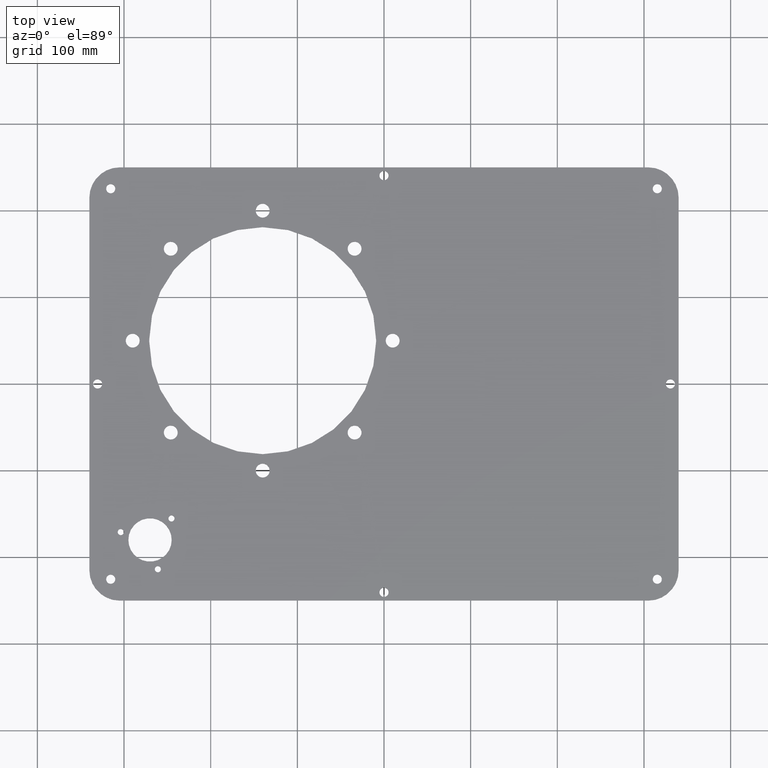
[diagram: clean part render]
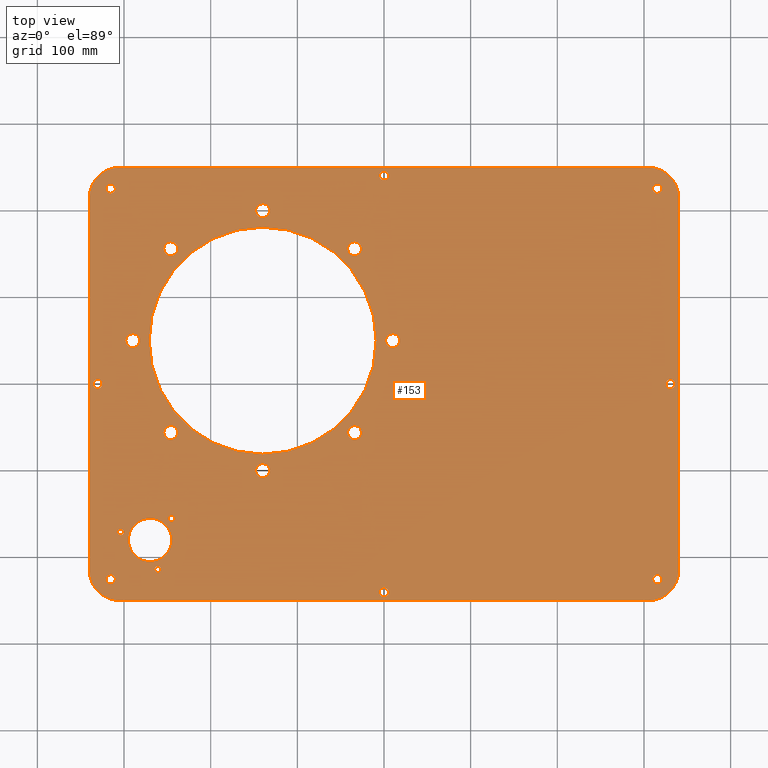
[diagram: same view with one face highlighted and labeled with its STEP entity id]
A machine part, top view. The second image highlights one B-rep face of the part: STEP entity #153.
In plain terms, the highlighted planar face has unit normal (0, 0, 1).
Its self-contained STEP definition (entity closure, byte-faithful):
#76=FACE_BOUND('',#241,.T.);
#77=FACE_BOUND('',#242,.T.);
#78=FACE_BOUND('',#243,.T.);
#79=FACE_BOUND('',#244,.T.);
#80=FACE_BOUND('',#245,.T.);
#81=FACE_BOUND('',#246,.T.);
#82=FACE_BOUND('',#247,.T.);
#83=FACE_BOUND('',#248,.T.);
#84=FACE_BOUND('',#249,.T.);
#85=FACE_BOUND('',#250,.T.);
#86=FACE_BOUND('',#251,.T.);
#87=FACE_BOUND('',#252,.T.);
#88=FACE_BOUND('',#253,.T.);
#89=FACE_BOUND('',#254,.T.);
#90=FACE_BOUND('',#255,.T.);
#91=FACE_BOUND('',#256,.T.);
#92=FACE_BOUND('',#257,.T.);
#93=FACE_BOUND('',#258,.T.);
#94=FACE_BOUND('',#259,.T.);
#95=FACE_BOUND('',#260,.T.);
#96=FACE_BOUND('',#261,.T.);
#122=PLANE('',#702);
#153=ADVANCED_FACE('',(#188,#76,#77,#78,#79,#80,#81,#82,#83,#84,#85,#86,
#87,#88,#89,#90,#91,#92,#93,#94,#95,#96),#122,.T.);
#188=FACE_OUTER_BOUND('',#240,.T.);
#240=EDGE_LOOP('',(#390,#391,#392,#393,#394,#395,#396,#397));
#241=EDGE_LOOP('',(#398));
#242=EDGE_LOOP('',(#399));
#243=EDGE_LOOP('',(#400));
#244=EDGE_LOOP('',(#401));
#245=EDGE_LOOP('',(#402));
#246=EDGE_LOOP('',(#403));
#247=EDGE_LOOP('',(#404));
#248=EDGE_LOOP('',(#405));
#249=EDGE_LOOP('',(#406));
#250=EDGE_LOOP('',(#407));
#251=EDGE_LOOP('',(#408));
#252=EDGE_LOOP('',(#409));
#253=EDGE_LOOP('',(#410));
#254=EDGE_LOOP('',(#411));
#255=EDGE_LOOP('',(#412));
#256=EDGE_LOOP('',(#413));
#257=EDGE_LOOP('',(#414));
#258=EDGE_LOOP('',(#415));
#259=EDGE_LOOP('',(#416));
#260=EDGE_LOOP('',(#417));
#261=EDGE_LOOP('',(#418));
#288=LINE('',#898,#304);
#292=LINE('',#910,#308);
#296=LINE('',#922,#312);
#299=LINE('',#1031,#315);
#304=VECTOR('',#716,1.);
#308=VECTOR('',#728,1.);
#312=VECTOR('',#740,1.);
#315=VECTOR('',#871,1.);
#390=ORIENTED_EDGE('',*,*,#508,.T.);
#391=ORIENTED_EDGE('',*,*,#512,.T.);
#392=ORIENTED_EDGE('',*,*,#515,.T.);
#393=ORIENTED_EDGE('',*,*,#518,.T.);
#394=ORIENTED_EDGE('',*,*,#521,.T.);
#395=ORIENTED_EDGE('',*,*,#524,.T.);
#396=ORIENTED_EDGE('',*,*,#527,.T.);
#397=ORIENTED_EDGE('',*,*,#569,.T.);
#398=ORIENTED_EDGE('',*,*,#566,.F.);
#399=ORIENTED_EDGE('',*,*,#564,.T.);
#400=ORIENTED_EDGE('',*,*,#562,.T.);
#401=ORIENTED_EDGE('',*,*,#560,.T.);
#402=ORIENTED_EDGE('',*,*,#558,.T.);
#403=ORIENTED_EDGE('',*,*,#556,.F.);
#404=ORIENTED_EDGE('',*,*,#554,.T.);
#405=ORIENTED_EDGE('',*,*,#552,.F.);
#406=ORIENTED_EDGE('',*,*,#550,.F.);
#407=ORIENTED_EDGE('',*,*,#548,.F.);
#408=ORIENTED_EDGE('',*,*,#546,.F.);
#409=ORIENTED_EDGE('',*,*,#544,.T.);
#410=ORIENTED_EDGE('',*,*,#542,.F.);
#411=ORIENTED_EDGE('',*,*,#540,.F.);
#412=ORIENTED_EDGE('',*,*,#538,.F.);
#413=ORIENTED_EDGE('',*,*,#536,.T.);
#414=ORIENTED_EDGE('',*,*,#534,.T.);
#415=ORIENTED_EDGE('',*,*,#532,.F.);
#416=ORIENTED_EDGE('',*,*,#530,.F.);
#417=ORIENTED_EDGE('',*,*,#528,.F.);
#418=ORIENTED_EDGE('',*,*,#570,.F.);
#450=VERTEX_POINT('',#889);
#451=VERTEX_POINT('',#891);
#453=VERTEX_POINT('',#897);
#455=VERTEX_POINT('',#903);
#457=VERTEX_POINT('',#909);
#459=VERTEX_POINT('',#915);
#461=VERTEX_POINT('',#921);
#463=VERTEX_POINT('',#927);
#464=VERTEX_POINT('',#931);
#466=VERTEX_POINT('',#936);
#468=VERTEX_POINT('',#941);
#470=VERTEX_POINT('',#946);
#472=VERTEX_POINT('',#951);
#474=VERTEX_POINT('',#956);
#476=VERTEX_POINT('',#961);
#478=VERTEX_POINT('',#966);
#480=VERTEX_POINT('',#971);
#482=VERTEX_POINT('',#976);
#484=VERTEX_POINT('',#981);
#486=VERTEX_POINT('',#986);
#488=VERTEX_POINT('',#991);
#490=VERTEX_POINT('',#996);
#492=VERTEX_POINT('',#1001);
#494=VERTEX_POINT('',#1006);
#496=VERTEX_POINT('',#1011);
#498=VERTEX_POINT('',#1016);
#500=VERTEX_POINT('',#1021);
#502=VERTEX_POINT('',#1026);
#504=VERTEX_POINT('',#1034);
#508=EDGE_CURVE('',#451,#450,#573,.T.);
#512=EDGE_CURVE('',#450,#453,#288,.T.);
#515=EDGE_CURVE('',#453,#455,#575,.T.);
#518=EDGE_CURVE('',#455,#457,#292,.T.);
#521=EDGE_CURVE('',#457,#459,#577,.T.);
#524=EDGE_CURVE('',#459,#461,#296,.T.);
#527=EDGE_CURVE('',#461,#463,#579,.T.);
#528=EDGE_CURVE('',#464,#464,#580,.T.);
#530=EDGE_CURVE('',#466,#466,#582,.T.);
#532=EDGE_CURVE('',#468,#468,#584,.T.);
#534=EDGE_CURVE('',#470,#470,#586,.T.);
#536=EDGE_CURVE('',#472,#472,#588,.T.);
#538=EDGE_CURVE('',#474,#474,#590,.T.);
#540=EDGE_CURVE('',#476,#476,#592,.T.);
#542=EDGE_CURVE('',#478,#478,#594,.T.);
#544=EDGE_CURVE('',#480,#480,#596,.T.);
#546=EDGE_CURVE('',#482,#482,#598,.T.);
#548=EDGE_CURVE('',#484,#484,#600,.T.);
#550=EDGE_CURVE('',#486,#486,#602,.T.);
#552=EDGE_CURVE('',#488,#488,#604,.T.);
#554=EDGE_CURVE('',#490,#490,#606,.T.);
#556=EDGE_CURVE('',#492,#492,#608,.T.);
#558=EDGE_CURVE('',#494,#494,#610,.T.);
#560=EDGE_CURVE('',#496,#496,#612,.T.);
#562=EDGE_CURVE('',#498,#498,#614,.T.);
#564=EDGE_CURVE('',#500,#500,#616,.T.);
#566=EDGE_CURVE('',#502,#502,#618,.T.);
#569=EDGE_CURVE('',#463,#451,#299,.T.);
#570=EDGE_CURVE('',#504,#504,#620,.T.);
#573=CIRCLE('',#624,35.);
#575=CIRCLE('',#628,35.);
#577=CIRCLE('',#632,35.);
#579=CIRCLE('',#636,35.);
#580=CIRCLE('',#638,5.25);
#582=CIRCLE('',#641,5.25);
#584=CIRCLE('',#644,5.25);
#586=CIRCLE('',#647,25.);
#588=CIRCLE('',#650,3.5);
#590=CIRCLE('',#653,8.);
#592=CIRCLE('',#656,8.);
#594=CIRCLE('',#659,8.);
#596=CIRCLE('',#662,5.25);
#598=CIRCLE('',#665,8.);
#600=CIRCLE('',#668,8.);
#602=CIRCLE('',#671,8.);
#604=CIRCLE('',#674,8.);
#606=CIRCLE('',#677,5.25);
#608=CIRCLE('',#680,5.25);
#610=CIRCLE('',#683,5.25);
#612=CIRCLE('',#686,5.25);
#614=CIRCLE('',#689,3.5);
#616=CIRCLE('',#692,3.5);
#618=CIRCLE('',#695,8.);
#620=CIRCLE('',#699,131.);
#624=AXIS2_PLACEMENT_3D('',#890,#709,#710);
#628=AXIS2_PLACEMENT_3D('',#904,#722,#723);
#632=AXIS2_PLACEMENT_3D('',#916,#734,#735);
#636=AXIS2_PLACEMENT_3D('',#928,#746,#747);
#638=AXIS2_PLACEMENT_3D('',#930,#750,#751);
#641=AXIS2_PLACEMENT_3D('',#935,#756,#757);
#644=AXIS2_PLACEMENT_3D('',#940,#762,#763);
#647=AXIS2_PLACEMENT_3D('',#945,#768,#769);
#650=AXIS2_PLACEMENT_3D('',#950,#774,#775);
#653=AXIS2_PLACEMENT_3D('',#955,#780,#781);
#656=AXIS2_PLACEMENT_3D('',#960,#786,#787);
#659=AXIS2_PLACEMENT_3D('',#965,#792,#793);
#662=AXIS2_PLACEMENT_3D('',#970,#798,#799);
#665=AXIS2_PLACEMENT_3D('',#975,#804,#805);
#668=AXIS2_PLACEMENT_3D('',#980,#810,#811);
#671=AXIS2_PLACEMENT_3D('',#985,#816,#817);
#674=AXIS2_PLACEMENT_3D('',#990,#822,#823);
#677=AXIS2_PLACEMENT_3D('',#995,#828,#829);
#680=AXIS2_PLACEMENT_3D('',#1000,#834,#835);
#683=AXIS2_PLACEMENT_3D('',#1005,#840,#841);
#686=AXIS2_PLACEMENT_3D('',#1010,#846,#847);
#689=AXIS2_PLACEMENT_3D('',#1015,#852,#853);
#692=AXIS2_PLACEMENT_3D('',#1020,#858,#859);
#695=AXIS2_PLACEMENT_3D('',#1025,#864,#865);
#699=AXIS2_PLACEMENT_3D('',#1033,#874,#875);
#702=AXIS2_PLACEMENT_3D('',#1038,#880,#881);
#709=DIRECTION('',(0.,0.,1.));
#710=DIRECTION('',(0.999999999999999,0.,0.));
#716=DIRECTION('',(0.,1.,0.));
#722=DIRECTION('',(0.,0.,1.));
#723=DIRECTION('',(0.999999999999999,0.,0.));
#728=DIRECTION('',(-1.,0.,0.));
#734=DIRECTION('',(0.,0.,1.));
#735=DIRECTION('',(0.999999999999999,0.,0.));
#740=DIRECTION('',(0.,-1.,0.));
#746=DIRECTION('',(0.,0.,1.));
#747=DIRECTION('',(0.999999999999999,0.,0.));
#750=DIRECTION('',(0.,0.,1.));
#751=DIRECTION('',(1.,0.,0.));
#756=DIRECTION('',(0.,0.,1.));
#757=DIRECTION('',(-0.999999999999996,0.,0.));
#762=DIRECTION('',(0.,0.,1.));
#763=DIRECTION('',(0.999999999999996,0.,0.));
#768=DIRECTION('',(0.,0.,-1.));
#769=DIRECTION('',(-1.,0.,0.));
#774=DIRECTION('',(0.,0.,-1.));
#775=DIRECTION('',(0.25881904510253,-0.96592582628904,0.));
#780=DIRECTION('',(0.,0.,1.));
#781=DIRECTION('',(-0.707106781186545,0.707106781186573,0.));
#786=DIRECTION('',(0.,0.,1.));
#787=DIRECTION('',(0.707106781186548,-0.707106781186573,0.));
#792=DIRECTION('',(0.,0.,1.));
#793=DIRECTION('',(-1.,0.,0.));
#798=DIRECTION('',(0.,0.,-1.));
#799=DIRECTION('',(1.,0.,0.));
#804=DIRECTION('',(0.,0.,1.));
#805=DIRECTION('',(1.,0.,0.));
#810=DIRECTION('',(0.,0.,1.));
#811=DIRECTION('',(-0.707106781186545,-0.707106781186573,0.));
#816=DIRECTION('',(0.,0.,1.));
#817=DIRECTION('',(0.707106781186548,0.707106781186573,0.));
#822=DIRECTION('',(0.,0.,1.));
#823=DIRECTION('',(0.,-1.,0.));
#828=DIRECTION('',(0.,0.,-1.));
#829=DIRECTION('',(-0.999999999999996,0.,0.));
#834=DIRECTION('',(0.,0.,1.));
#835=DIRECTION('',(0.999999999999996,0.,0.));
#840=DIRECTION('',(0.,0.,-1.));
#841=DIRECTION('',(-0.999999999999996,0.,0.));
#846=DIRECTION('',(0.,0.,-1.));
#847=DIRECTION('',(0.999999999999996,0.,0.));
#852=DIRECTION('',(0.,0.,-1.));
#853=DIRECTION('',(-0.965925826289071,0.258819045102499,0.));
#858=DIRECTION('',(0.,0.,-1.));
#859=DIRECTION('',(0.707106781186549,0.707106781186541,0.));
#864=DIRECTION('',(0.,0.,1.));
#865=DIRECTION('',(0.,1.,0.));
#871=DIRECTION('',(1.,0.,0.));
#874=DIRECTION('',(0.,0.,1.));
#875=DIRECTION('',(1.,0.,0.));
#880=DIRECTION('',(0.,0.,1.));
#881=DIRECTION('',(1.,0.,0.));
#889=CARTESIAN_POINT('',(340.,-3215.,4.));
#890=CARTESIAN_POINT('',(305.,-3215.,4.));
#891=CARTESIAN_POINT('',(305.,-3250.,4.));
#897=CARTESIAN_POINT('',(340.,-2785.,4.));
#898=CARTESIAN_POINT('',(340.,-3215.,4.));
#903=CARTESIAN_POINT('',(305.,-2750.,4.));
#904=CARTESIAN_POINT('',(305.,-2785.,4.));
#909=CARTESIAN_POINT('',(-305.,-2750.,4.));
#910=CARTESIAN_POINT('',(305.,-2750.,4.));
#915=CARTESIAN_POINT('',(-340.,-2785.,4.));
#916=CARTESIAN_POINT('',(-305.,-2785.,4.));
#921=CARTESIAN_POINT('',(-340.,-3215.,4.));
#922=CARTESIAN_POINT('',(-340.,-2785.,4.));
#927=CARTESIAN_POINT('',(-305.,-3250.,4.));
#928=CARTESIAN_POINT('',(-305.,-3215.,4.));
#930=CARTESIAN_POINT('',(0.,-2759.5,4.));
#931=CARTESIAN_POINT('',(5.25,-2759.5,4.));
#935=CARTESIAN_POINT('',(315.370057685089,-3225.37005768509,4.));
#936=CARTESIAN_POINT('',(310.120057685089,-3225.37005768509,4.));
#940=CARTESIAN_POINT('',(-315.370057685089,-2774.62994231491,4.));
#941=CARTESIAN_POINT('',(-310.120057685089,-2774.62994231491,4.));
#945=CARTESIAN_POINT('',(-270.,-3180.,4.));
#946=CARTESIAN_POINT('',(-295.,-3180.,4.));
#950=CARTESIAN_POINT('',(-260.941333421412,-3213.80740392012,4.));
#951=CARTESIAN_POINT('',(-260.035466763553,-3217.18814431213,4.));
#955=CARTESIAN_POINT('',(-246.066017177982,-2843.93398282201,4.));
#956=CARTESIAN_POINT('',(-251.722871427474,-2838.27712857252,4.));
#960=CARTESIAN_POINT('',(-33.9339828220151,-3056.06601717799,4.));
#961=CARTESIAN_POINT('',(-28.2771285725227,-3061.72287142748,4.));
#965=CARTESIAN_POINT('',(-289.999999999999,-2950.,4.));
#966=CARTESIAN_POINT('',(-297.999999999999,-2950.,4.));
#970=CARTESIAN_POINT('',(0.,-3240.5,4.));
#971=CARTESIAN_POINT('',(5.25,-3240.5,4.));
#975=CARTESIAN_POINT('',(10.0000000000041,-2950.,4.));
#976=CARTESIAN_POINT('',(18.0000000000041,-2950.,4.));
#980=CARTESIAN_POINT('',(-246.066017177985,-3056.06601717798,4.));
#981=CARTESIAN_POINT('',(-251.722871427477,-3061.72287142748,4.));
#985=CARTESIAN_POINT('',(-33.9339828220178,-2843.93398282202,4.));
#986=CARTESIAN_POINT('',(-28.2771285725254,-2838.27712857253,4.));
#990=CARTESIAN_POINT('',(-140.000000000708,-3099.99999999997,4.));
#991=CARTESIAN_POINT('',(-140.000000000708,-3107.99999999997,4.));
#995=CARTESIAN_POINT('',(330.5,-3000.,4.));
#996=CARTESIAN_POINT('',(325.25,-3000.,4.));
#1000=CARTESIAN_POINT('',(-330.5,-3000.,4.));
#1001=CARTESIAN_POINT('',(-325.25,-3000.,4.));
#1005=CARTESIAN_POINT('',(315.370057685089,-2774.62994231491,4.));
#1006=CARTESIAN_POINT('',(310.120057685089,-2774.62994231491,4.));
#1010=CARTESIAN_POINT('',(-315.370057685089,-3225.37005768509,4.));
#1011=CARTESIAN_POINT('',(-310.120057685089,-3225.37005768509,4.));
#1015=CARTESIAN_POINT('',(-303.807403920117,-3170.94133342141,4.));
#1016=CARTESIAN_POINT('',(-307.188144312129,-3170.03546676355,4.));
#1020=CARTESIAN_POINT('',(-245.251262658473,-3155.25126265847,4.));
#1021=CARTESIAN_POINT('',(-242.77638892432,-3152.77638892432,4.));
#1025=CARTESIAN_POINT('',(-139.999999999997,-2800.,4.));
#1026=CARTESIAN_POINT('',(-139.999999999997,-2792.,4.));
#1031=CARTESIAN_POINT('',(-305.,-3250.,4.));
#1033=CARTESIAN_POINT('',(-140.,-2950.,4.));
#1034=CARTESIAN_POINT('',(-9.00000000000001,-2950.,4.));
#1038=CARTESIAN_POINT('',(305.,-3215.,4.));